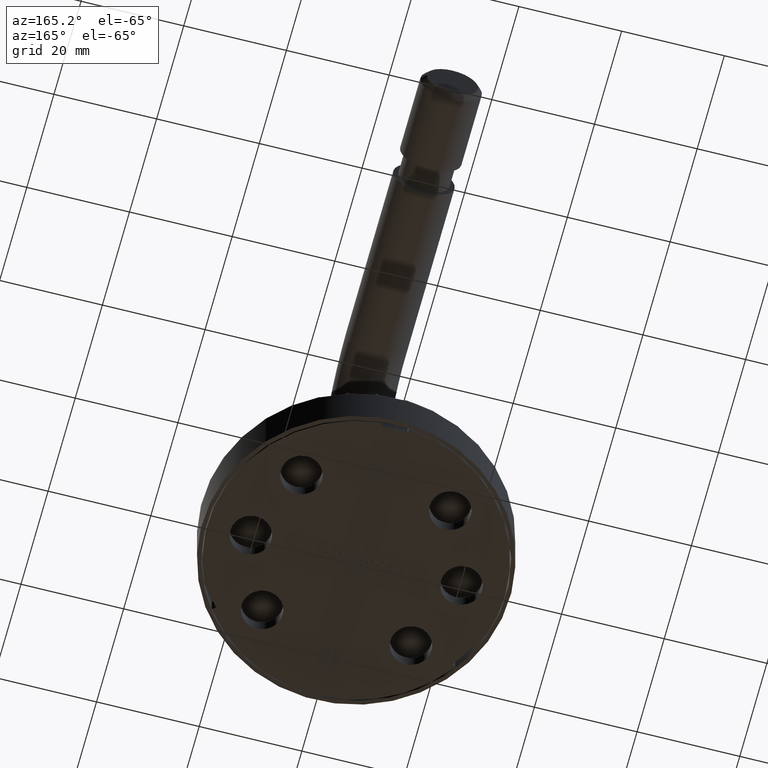
[diagram: clean part render]
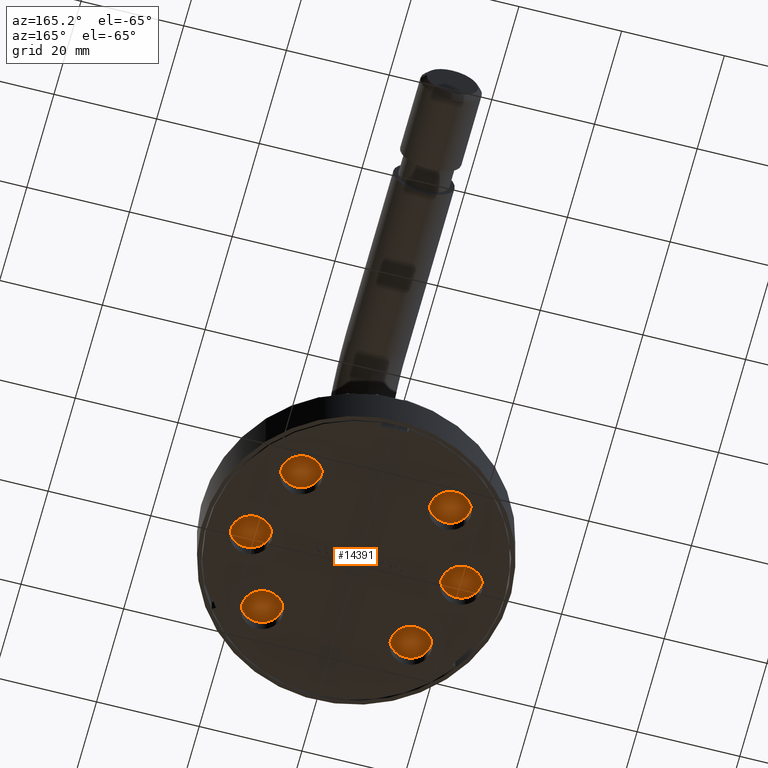
[diagram: same view with one face highlighted and labeled with its STEP entity id]
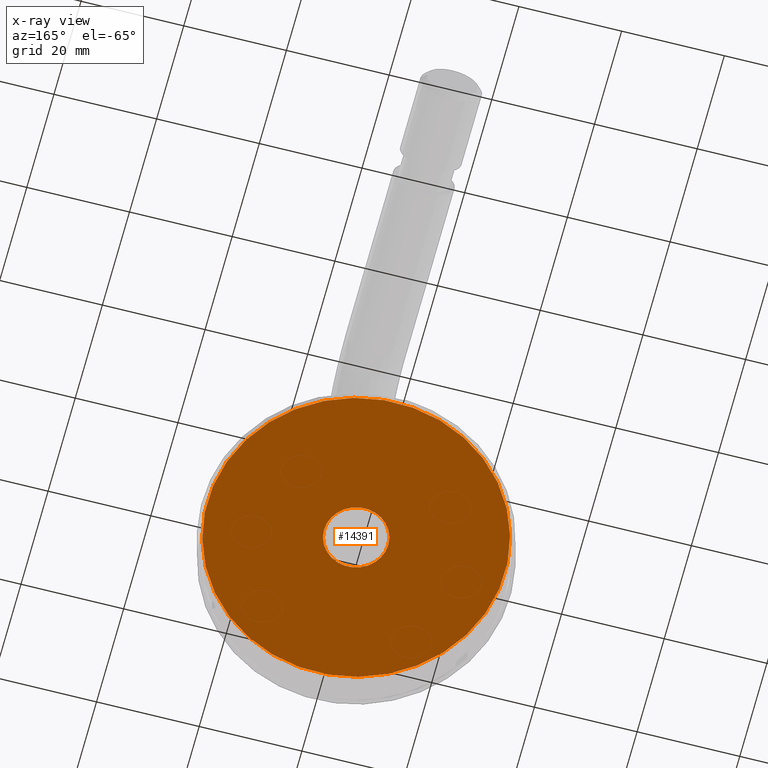
[diagram: x-ray of the same camera — body ghosted, the highlighted face saturated]
A machine part, auxiliary view. The second image highlights one B-rep face of the part: STEP entity #14391.
The next image is the same camera in x-ray: the body ghosted, the highlighted face saturated — about 0% of this face is hidden behind the body in this view.
In plain terms, the highlighted planar face has unit normal (0, 0, 1).
Its self-contained STEP definition (entity closure, byte-faithful):
#825 = DIRECTION ( 'NONE',  ( 1.000000000000000000, 0.000000000000000000, 0.000000000000000000 ) ) ;
#952 = AXIS2_PLACEMENT_3D ( 'NONE', #7130, #3601, #11786 ) ;
#1071 = ORIENTED_EDGE ( 'NONE', *, *, #14441, .F. ) ;
#1505 = EDGE_LOOP ( 'NONE', ( #1071, #8445 ) ) ;
#2375 = DIRECTION ( 'NONE',  ( 1.000000000000000000, 0.000000000000000000, 0.000000000000000000 ) ) ;
#2558 = CIRCLE ( 'NONE', #5951, 28.99999999999999645 ) ;
#3272 = VERTEX_POINT ( 'NONE', #4409 ) ;
#3601 = DIRECTION ( 'NONE',  ( -0.000000000000000000, -0.000000000000000000, 1.000000000000000000 ) ) ;
#4409 = CARTESIAN_POINT ( 'NONE',  ( 28.99999999999999645, 0.000000000000000000, -0.8000000000000005995 ) ) ;
#4873 = CARTESIAN_POINT ( 'NONE',  ( -28.99999999999999645, 3.563722185518797387E-15, -0.8000000000000005995 ) ) ;
#5254 = VERTEX_POINT ( 'NONE', #4873 ) ;
#5626 = CARTESIAN_POINT ( 'NONE',  ( 0.000000000000000000, 0.000000000000000000, -0.8000000000000000444 ) ) ;
#5644 = ORIENTED_EDGE ( 'NONE', *, *, #9344, .T. ) ;
#5853 = CARTESIAN_POINT ( 'NONE',  ( 0.000000000000000000, 0.000000000000000000, -0.8000000000000000444 ) ) ;
#5951 = AXIS2_PLACEMENT_3D ( 'NONE', #9080, #6667, #11401 ) ;
#6653 = CARTESIAN_POINT ( 'NONE',  ( -6.249999999999998224, 7.654042494670955634E-16, -0.8000000000000000444 ) ) ;
#6667 = DIRECTION ( 'NONE',  ( -0.000000000000000000, -0.000000000000000000, 1.000000000000000000 ) ) ;
#7130 = CARTESIAN_POINT ( 'NONE',  ( 0.000000000000000000, 0.000000000000000000, -0.8000000000000005995 ) ) ;
#8445 = ORIENTED_EDGE ( 'NONE', *, *, #9370, .F. ) ;
#8451 = EDGE_CURVE ( 'NONE', #11093, #8763, #13052, .T. ) ;
#8763 = VERTEX_POINT ( 'NONE', #6653 ) ;
#9035 = DIRECTION ( 'NONE',  ( -0.000000000000000000, -0.000000000000000000, 1.000000000000000000 ) ) ;
#9080 = CARTESIAN_POINT ( 'NONE',  ( 0.000000000000000000, 0.000000000000000000, -0.8000000000000005995 ) ) ;
#9344 = EDGE_CURVE ( 'NONE', #8763, #11093, #11095, .T. ) ;
#9370 = EDGE_CURVE ( 'NONE', #5254, #3272, #13508, .T. ) ;
#9680 = CARTESIAN_POINT ( 'NONE',  ( 6.249999999999998224, 0.000000000000000000, -0.8000000000000000444 ) ) ;
#10121 = PLANE ( 'NONE',  #12763 ) ;
#10171 = DIRECTION ( 'NONE',  ( 0.000000000000000000, -0.000000000000000000, 1.000000000000000000 ) ) ;
#10212 = CARTESIAN_POINT ( 'NONE',  ( 0.000000000000000000, 6.249999999999998224, -0.8000000000000003775 ) ) ;
#10671 = FACE_OUTER_BOUND ( 'NONE', #1505, .T. ) ;
#11093 = VERTEX_POINT ( 'NONE', #9680 ) ;
#11095 = CIRCLE ( 'NONE', #13571, 6.249999999999998224 ) ;
#11401 = DIRECTION ( 'NONE',  ( 1.000000000000000000, 0.000000000000000000, 0.000000000000000000 ) ) ;
#11786 = DIRECTION ( 'NONE',  ( 1.000000000000000000, 0.000000000000000000, 0.000000000000000000 ) ) ;
#11942 = DIRECTION ( 'NONE',  ( -0.000000000000000000, -0.000000000000000000, 1.000000000000000000 ) ) ;
#12337 = FACE_BOUND ( 'NONE', #13019, .T. ) ;
#12763 = AXIS2_PLACEMENT_3D ( 'NONE', #10212, #10171, #14945 ) ;
#12929 = ORIENTED_EDGE ( 'NONE', *, *, #8451, .T. ) ;
#13019 = EDGE_LOOP ( 'NONE', ( #12929, #5644 ) ) ;
#13052 = CIRCLE ( 'NONE', #14608, 6.249999999999998224 ) ;
#13508 = CIRCLE ( 'NONE', #952, 28.99999999999999645 ) ;
#13571 = AXIS2_PLACEMENT_3D ( 'NONE', #5853, #11942, #2375 ) ;
#14391 = ADVANCED_FACE ( 'NONE', ( #10671, #12337 ), #10121, .F. ) ;
#14441 = EDGE_CURVE ( 'NONE', #3272, #5254, #2558, .T. ) ;
#14608 = AXIS2_PLACEMENT_3D ( 'NONE', #5626, #9035, #825 ) ;
#14945 = DIRECTION ( 'NONE',  ( 1.000000000000000000, 0.000000000000000000, 0.000000000000000000 ) ) ;